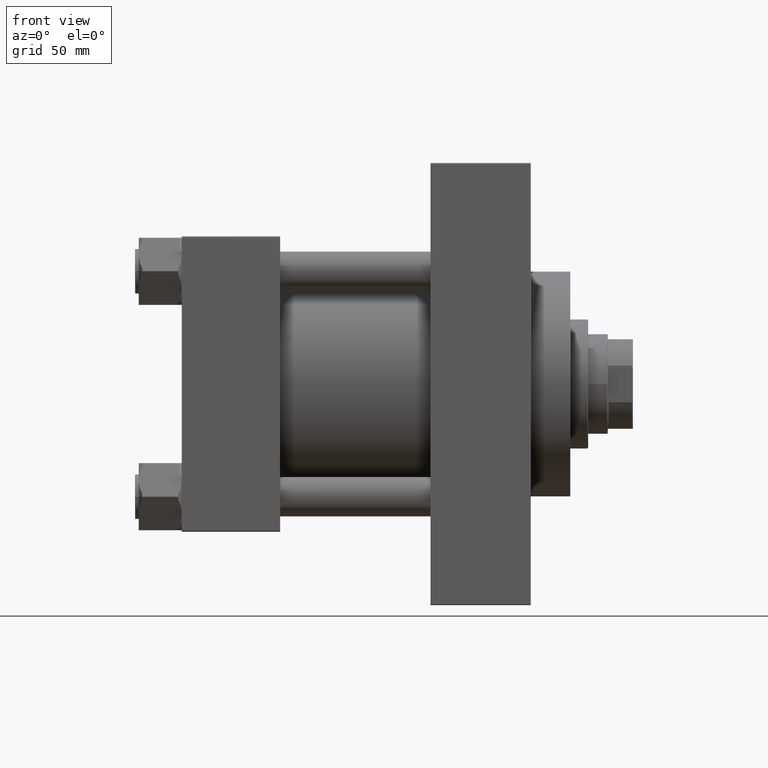
[diagram: clean part render]
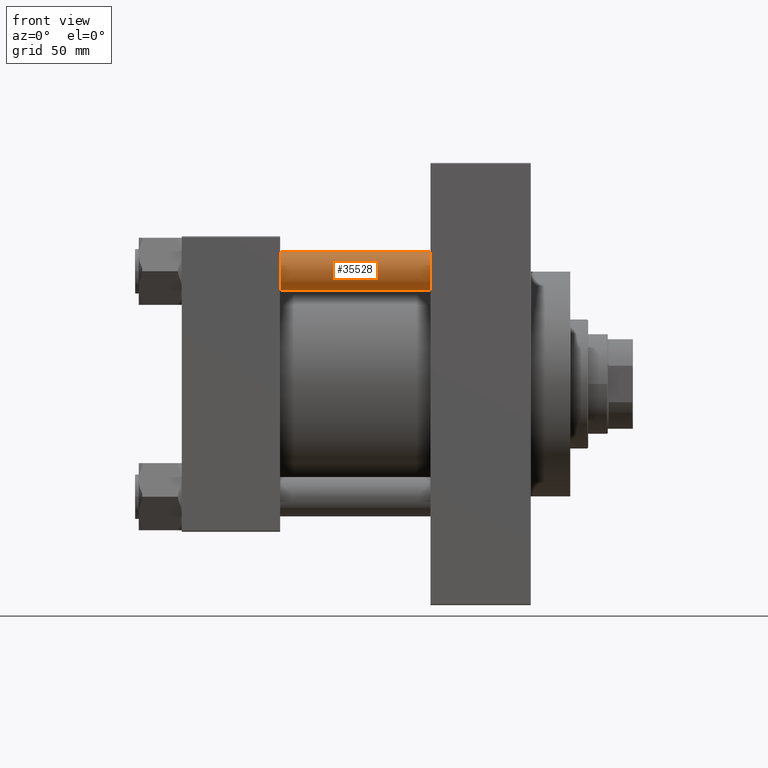
[diagram: same view with one face highlighted and labeled with its STEP entity id]
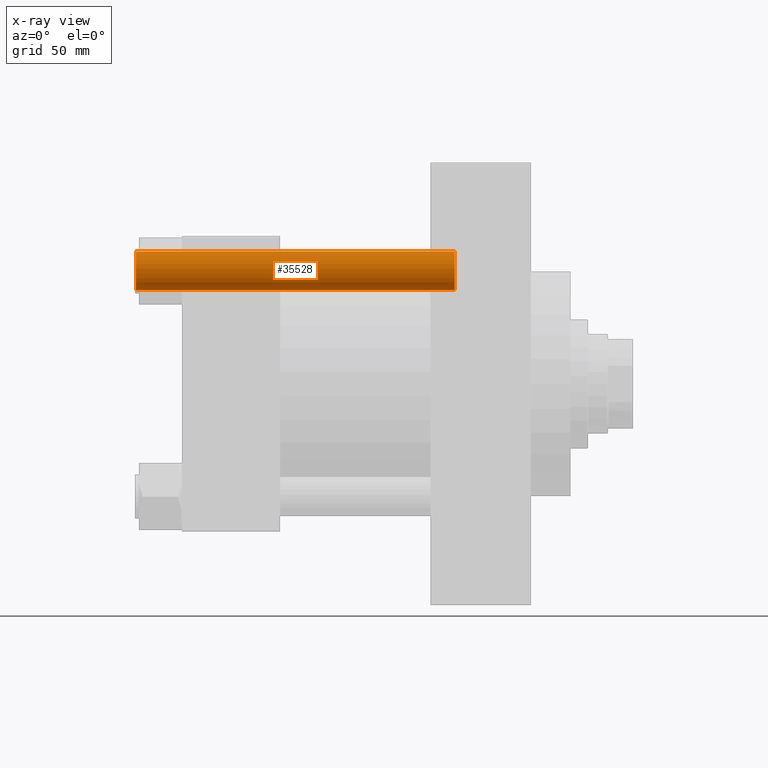
[diagram: x-ray of the same camera — body ghosted, the highlighted face saturated]
A machine part, front view. The second image highlights one B-rep face of the part: STEP entity #35528.
The next image is the same camera in x-ray: the body ghosted, the highlighted face saturated — about 0% of this face is hidden behind the body in this view.
In plain terms, the highlighted cylindrical surface (edge-blend (fillet) strip) has radius 11 mm, axis along (1, 0, 0).
Its self-contained STEP definition (entity closure, byte-faithful):
#536 = CARTESIAN_POINT ( 'NONE',  ( 0.000000000000000000, 0.000000000000000000, 178.5000000000000853 ) ) ;
#849 = EDGE_CURVE ( 'NONE', #11550, #38079, #32234, .T. ) ;
#4674 = DIRECTION ( 'NONE',  ( -0.000000000000000000, -0.000000000000000000, -1.000000000000000000 ) ) ;
#6144 = LINE ( 'NONE', #41220, #33030 ) ;
#7110 = ORIENTED_EDGE ( 'NONE', *, *, #849, .T. ) ;
#8435 = CARTESIAN_POINT ( 'NONE',  ( 11.00000000000000000, 1.347111479062088207E-15, 178.5000000000000853 ) ) ;
#8767 = DIRECTION ( 'NONE',  ( -0.000000000000000000, -0.000000000000000000, 1.000000000000000000 ) ) ;
#8848 = CARTESIAN_POINT ( 'NONE',  ( -11.00000000000000000, 0.000000000000000000, 178.5000000000000853 ) ) ;
#10006 = CIRCLE ( 'NONE', #27012, 11.00000000000000000 ) ;
#11550 = VERTEX_POINT ( 'NONE', #8435 ) ;
#11925 = DIRECTION ( 'NONE',  ( 1.000000000000000000, 0.000000000000000000, 0.000000000000000000 ) ) ;
#14590 = ORIENTED_EDGE ( 'NONE', *, *, #36588, .T. ) ;
#15321 = DIRECTION ( 'NONE',  ( 0.000000000000000000, 0.000000000000000000, -1.000000000000000000 ) ) ;
#17167 = DIRECTION ( 'NONE',  ( -1.000000000000000000, 0.000000000000000000, 0.000000000000000000 ) ) ;
#19010 = CIRCLE ( 'NONE', #44469, 11.00000000000000000 ) ;
#24414 = FACE_OUTER_BOUND ( 'NONE', #29752, .T. ) ;
#27012 = AXIS2_PLACEMENT_3D ( 'NONE', #536, #15321, #33950 ) ;
#27762 = VECTOR ( 'NONE', #36106, 1000.000000000000000 ) ;
#28408 = CARTESIAN_POINT ( 'NONE',  ( 11.00000000000000000, 1.347111479062088207E-15, 0.5000000000001392220 ) ) ;
#28870 = EDGE_CURVE ( 'NONE', #31943, #11550, #10006, .T. ) ;
#29752 = EDGE_LOOP ( 'NONE', ( #34155, #7110, #14590, #31464 ) ) ;
#30304 = CARTESIAN_POINT ( 'NONE',  ( 0.000000000000000000, 0.000000000000000000, 0.5000000000001392220 ) ) ;
#31325 = AXIS2_PLACEMENT_3D ( 'NONE', #39189, #46886, #17167 ) ;
#31464 = ORIENTED_EDGE ( 'NONE', *, *, #43001, .F. ) ;
#31943 = VERTEX_POINT ( 'NONE', #8848 ) ;
#32234 = LINE ( 'NONE', #42859, #27762 ) ;
#33030 = VECTOR ( 'NONE', #4674, 1000.000000000000000 ) ;
#33950 = DIRECTION ( 'NONE',  ( 1.000000000000000000, 0.000000000000000000, 0.000000000000000000 ) ) ;
#34155 = ORIENTED_EDGE ( 'NONE', *, *, #28870, .T. ) ;
#35528 = ADVANCED_FACE ( 'NONE', ( #24414 ), #42802, .T. ) ;
#36106 = DIRECTION ( 'NONE',  ( -0.000000000000000000, -0.000000000000000000, -1.000000000000000000 ) ) ;
#36588 = EDGE_CURVE ( 'NONE', #38079, #36910, #19010, .T. ) ;
#36910 = VERTEX_POINT ( 'NONE', #47074 ) ;
#38079 = VERTEX_POINT ( 'NONE', #28408 ) ;
#39189 = CARTESIAN_POINT ( 'NONE',  ( 0.000000000000000000, 0.000000000000000000, 179.0000000000000000 ) ) ;
#41220 = CARTESIAN_POINT ( 'NONE',  ( -11.00000000000000000, 0.000000000000000000, 179.0000000000000000 ) ) ;
#42802 = CYLINDRICAL_SURFACE ( 'NONE', #31325, 11.00000000000000000 ) ;
#42859 = CARTESIAN_POINT ( 'NONE',  ( 11.00000000000000000, 1.347111479062088207E-15, 179.0000000000000000 ) ) ;
#43001 = EDGE_CURVE ( 'NONE', #31943, #36910, #6144, .T. ) ;
#44469 = AXIS2_PLACEMENT_3D ( 'NONE', #30304, #8767, #11925 ) ;
#46886 = DIRECTION ( 'NONE',  ( -0.000000000000000000, -0.000000000000000000, -1.000000000000000000 ) ) ;
#47074 = CARTESIAN_POINT ( 'NONE',  ( -11.00000000000000000, 0.000000000000000000, 0.5000000000001392220 ) ) ;